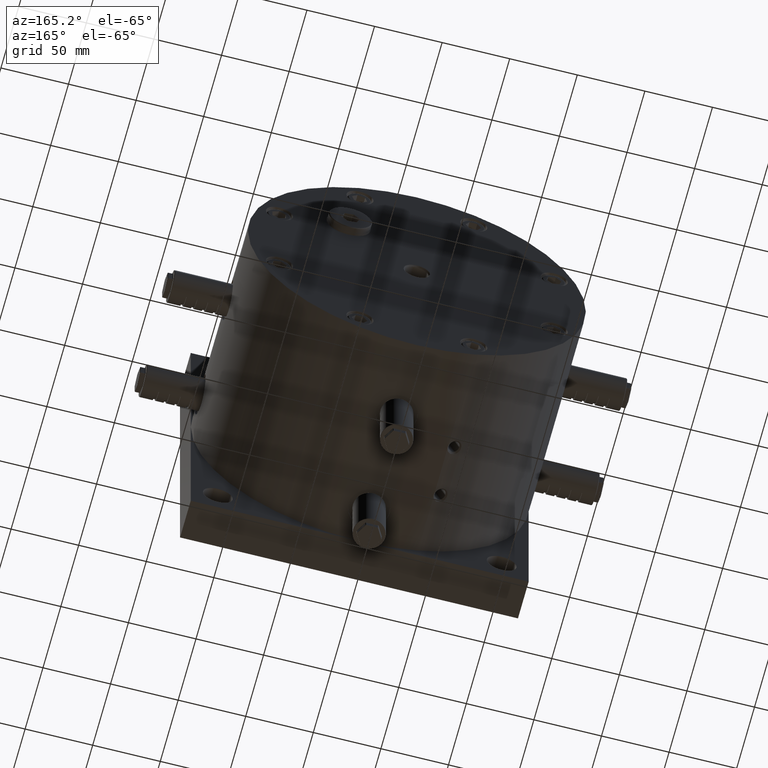
[diagram: clean part render]
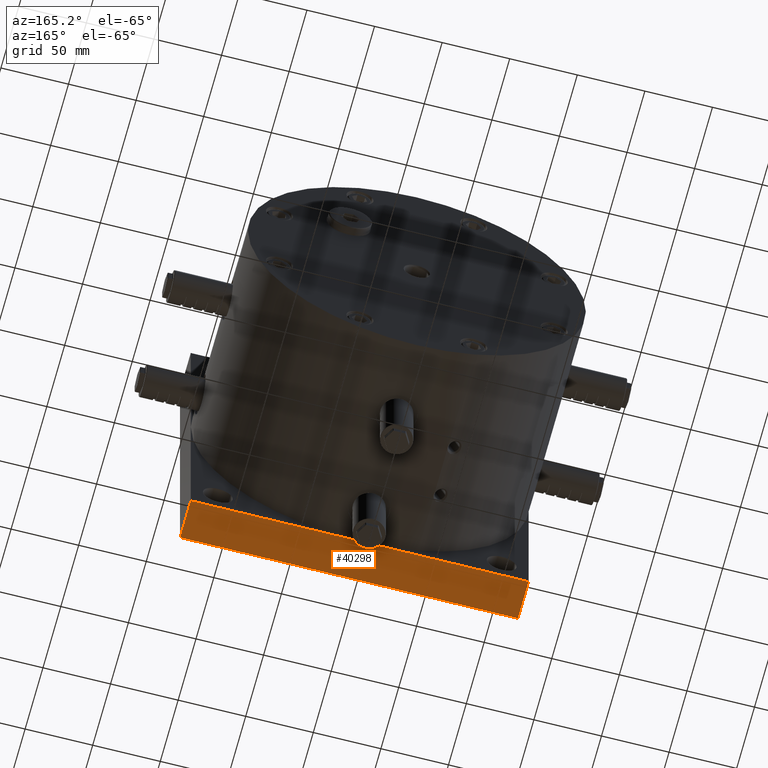
[diagram: same view with one face highlighted and labeled with its STEP entity id]
A machine part, auxiliary view. The second image highlights one B-rep face of the part: STEP entity #40298.
In plain terms, the highlighted planar face has unit normal (0, 0, 1).
Its self-contained STEP definition (entity closure, byte-faithful):
#80 = CARTESIAN_POINT ( 'NONE',  ( -125.0000000000000000, 30.00000000000000000, -125.0000000000000000 ) ) ;
#3767 = CARTESIAN_POINT ( 'NONE',  ( -125.0000000000000000, 30.00000000000000000, -125.0000000000000000 ) ) ;
#9039 = VECTOR ( 'NONE', #73282, 1000.000000000000000 ) ;
#12626 = LINE ( 'NONE', #41023, #20580 ) ;
#12714 = DIRECTION ( 'NONE',  ( -1.000000000000000000, 0.0000000000000000000, 5.551115123125779600E-017 ) ) ;
#14614 = VERTEX_POINT ( 'NONE', #80 ) ;
#14953 = DIRECTION ( 'NONE',  ( 1.000000000000000000, 0.0000000000000000000, -5.551115123125779600E-017 ) ) ;
#16103 = DIRECTION ( 'NONE',  ( 0.0000000000000000000, -1.000000000000000000, 0.0000000000000000000 ) ) ;
#20157 = DIRECTION ( 'NONE',  ( 5.551115123125779600E-017, 0.0000000000000000000, 1.000000000000000000 ) ) ;
#20288 = VERTEX_POINT ( 'NONE', #59687 ) ;
#20580 = VECTOR ( 'NONE', #12714, 1000.000000000000000 ) ;
#21098 = VECTOR ( 'NONE', #16103, 1000.000000000000000 ) ;
#21314 = CARTESIAN_POINT ( 'NONE',  ( -125.0000000000000000, 0.0000000000000000000, -125.0000000000000000 ) ) ;
#24113 = LINE ( 'NONE', #33544, #9039 ) ;
#26871 = PLANE ( 'NONE',  #65264 ) ;
#30515 = VERTEX_POINT ( 'NONE', #62827 ) ;
#33544 = CARTESIAN_POINT ( 'NONE',  ( 125.0000000000000000, 30.00000000000000000, -125.0000000000000000 ) ) ;
#34046 = VECTOR ( 'NONE', #50571, 1000.000000000000000 ) ;
#34975 = LINE ( 'NONE', #21314, #34046 ) ;
#36182 = LINE ( 'NONE', #38418, #21098 ) ;
#38344 = EDGE_CURVE ( 'NONE', #20288, #14614, #12626, .T. ) ;
#38418 = CARTESIAN_POINT ( 'NONE',  ( -125.0000000000000000, 30.00000000000000000, -125.0000000000000000 ) ) ;
#38430 = EDGE_LOOP ( 'NONE', ( #67698, #45458, #69227, #64459 ) ) ;
#40298 = ADVANCED_FACE ( 'NONE', ( #55029 ), #26871, .F. ) ;
#41023 = CARTESIAN_POINT ( 'NONE',  ( -125.0000000000000000, 30.00000000000000000, -125.0000000000000000 ) ) ;
#45458 = ORIENTED_EDGE ( 'NONE', *, *, #62810, .F. ) ;
#50571 = DIRECTION ( 'NONE',  ( -1.000000000000000000, 0.0000000000000000000, 5.551115123125779600E-017 ) ) ;
#51477 = CARTESIAN_POINT ( 'NONE',  ( 125.0000000000000000, 0.0000000000000000000, -125.0000000000000000 ) ) ;
#55029 = FACE_OUTER_BOUND ( 'NONE', #38430, .T. ) ;
#59019 = EDGE_CURVE ( 'NONE', #72533, #30515, #34975, .T. ) ;
#59687 = CARTESIAN_POINT ( 'NONE',  ( 125.0000000000000000, 30.00000000000000000, -125.0000000000000000 ) ) ;
#62810 = EDGE_CURVE ( 'NONE', #14614, #30515, #36182, .T. ) ;
#62827 = CARTESIAN_POINT ( 'NONE',  ( -125.0000000000000000, 0.0000000000000000000, -125.0000000000000000 ) ) ;
#64459 = ORIENTED_EDGE ( 'NONE', *, *, #72832, .T. ) ;
#65264 = AXIS2_PLACEMENT_3D ( 'NONE', #3767, #20157, #14953 ) ;
#67698 = ORIENTED_EDGE ( 'NONE', *, *, #59019, .T. ) ;
#69227 = ORIENTED_EDGE ( 'NONE', *, *, #38344, .F. ) ;
#72533 = VERTEX_POINT ( 'NONE', #51477 ) ;
#72832 = EDGE_CURVE ( 'NONE', #20288, #72533, #24113, .T. ) ;
#73282 = DIRECTION ( 'NONE',  ( 0.0000000000000000000, -1.000000000000000000, 0.0000000000000000000 ) ) ;